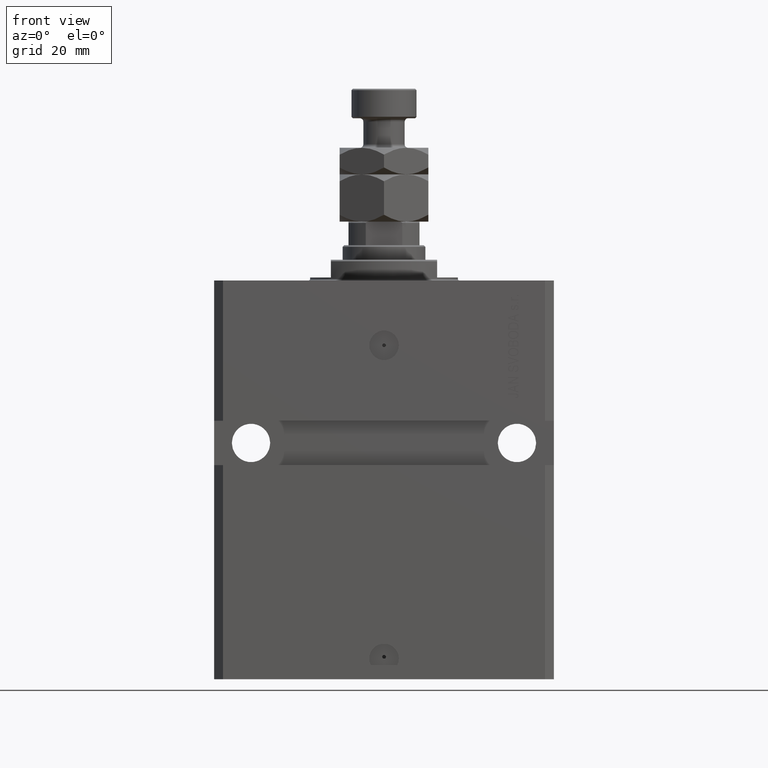
[diagram: clean part render]
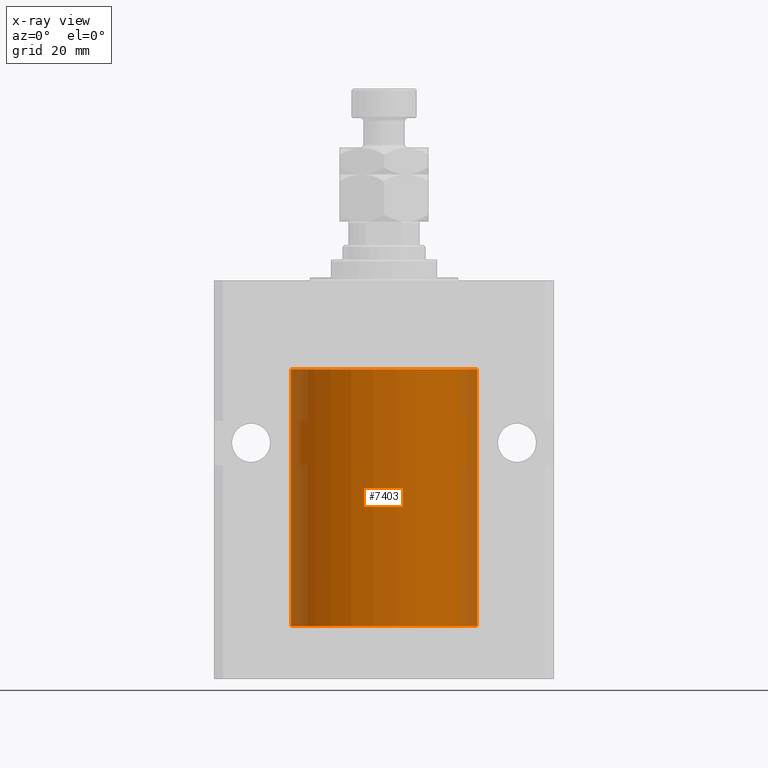
[diagram: x-ray — body ghosted, one internal face saturated and labeled with its STEP entity id]
A machine part, front view, then the same camera in x-ray: the body is ghosted and one INTERNAL B-rep face — a face not visible from any outside direction — is saturated and labeled: STEP entity #7403.
In plain terms, the highlighted cylindrical surface (partial cylindrical patch) has radius 31.5 mm, axis along (0, 0, 1).
Its self-contained STEP definition (entity closure, byte-faithful):
#206 = VERTEX_POINT ( 'NONE', #22600 ) ;
#939 = DIRECTION ( 'NONE',  ( -0.000000000000000000, -0.000000000000000000, 1.000000000000000000 ) ) ;
#1181 = LINE ( 'NONE', #4564, #10597 ) ;
#1528 = CARTESIAN_POINT ( 'NONE',  ( 0.000000000000000000, 0.000000000000000000, -117.0999999999999943 ) ) ;
#1666 = EDGE_CURVE ( 'NONE', #33650, #46640, #13874, .T. ) ;
#1940 = EDGE_LOOP ( 'NONE', ( #21794, #20771, #46532, #18380, #47286, #14823, #12312, #18649, #42335 ) ) ;
#2498 = CARTESIAN_POINT ( 'NONE',  ( 31.49851930977805381, -0.3264760966898029859, -113.4426595268314770 ) ) ;
#2671 = AXIS2_PLACEMENT_3D ( 'NONE', #17623, #25394, #17142 ) ;
#4160 = CARTESIAN_POINT ( 'NONE',  ( -31.50000000000000000, 3.857637417314162689E-15, -117.0999999999999943 ) ) ;
#4297 = CARTESIAN_POINT ( 'NONE',  ( -31.49380174372966223, -0.6248613812773637921, -114.1653655539884369 ) ) ;
#4564 = CARTESIAN_POINT ( 'NONE',  ( -31.50000000000000000, 3.857637417314162689E-15, -117.0999999999999943 ) ) ;
#5357 = DIRECTION ( 'NONE',  ( -0.000000000000000000, -0.000000000000000000, 1.000000000000000000 ) ) ;
#6394 = CYLINDRICAL_SURFACE ( 'NONE', #2671, 31.50000000000000000 ) ;
#6760 = VERTEX_POINT ( 'NONE', #27304 ) ;
#6822 = CARTESIAN_POINT ( 'NONE',  ( 31.50000000000000000, -2.492939093807799249E-15, -114.6250000000000000 ) ) ;
#7403 = ADVANCED_FACE ( 'NONE', ( #36116 ), #6394, .F. ) ;
#7714 = CARTESIAN_POINT ( 'NONE',  ( -31.49851430197701063, -0.3269482044720602998, -113.4429011246694188 ) ) ;
#7912 = CARTESIAN_POINT ( 'NONE',  ( 31.50000000000000000, 0.000000000000000000, -117.0999999999999943 ) ) ;
#9555 = DIRECTION ( 'NONE',  ( 1.000000000000000000, 0.000000000000000000, 0.000000000000000000 ) ) ;
#9825 = EDGE_CURVE ( 'NONE', #33650, #45529, #46497, .T. ) ;
#10597 = VECTOR ( 'NONE', #939, 1000.000000000000000 ) ;
#11118 = VERTEX_POINT ( 'NONE', #22850 ) ;
#11142 = EDGE_CURVE ( 'NONE', #6760, #45529, #37035, .T. ) ;
#11483 = LINE ( 'NONE', #4160, #29377 ) ;
#11711 = DIRECTION ( 'NONE',  ( -0.000000000000000000, -0.000000000000000000, 1.000000000000000000 ) ) ;
#12091 = CARTESIAN_POINT ( 'NONE',  ( -31.50000000000000000, -0.1631292369235416984, -114.6250000000001563 ) ) ;
#12312 = ORIENTED_EDGE ( 'NONE', *, *, #1666, .T. ) ;
#13697 = CARTESIAN_POINT ( 'NONE',  ( 31.49379899281761652, -0.6250000000000288658, -114.0000000000000000 ) ) ;
#13874 = B_SPLINE_CURVE_WITH_KNOTS ( 'NONE', 3,
 ( #25622, #40705, #2498, #17371, #47038, #13697 ),
 .UNSPECIFIED., .F., .F.,
 ( 4, 2, 4 ),
 ( 0.001954083649707730446, 0.002442753259884901558, 0.002931422870062072236 ),
 .UNSPECIFIED. ) ;
#13898 = CARTESIAN_POINT ( 'NONE',  ( 31.49851597466318864, -0.3267811800504749065, -114.5571701479423297 ) ) ;
#14522 = CARTESIAN_POINT ( 'NONE',  ( -31.50000000000000000, 3.857637417314162689E-15, -117.0999999999999943 ) ) ;
#14717 = EDGE_CURVE ( 'NONE', #27195, #11118, #1181, .T. ) ;
#14823 = ORIENTED_EDGE ( 'NONE', *, *, #9825, .F. ) ;
#15271 = CARTESIAN_POINT ( 'NONE',  ( -31.50000000000000000, -2.862469004324082213E-15, -113.3750000000000000 ) ) ;
#15290 = CARTESIAN_POINT ( 'NONE',  ( -31.49527619204366857, -0.5575625051463252158, -113.6738430774043564 ) ) ;
#15524 = CARTESIAN_POINT ( 'NONE',  ( -31.49528704891774211, -0.5569519313505083558, -114.3270938121662539 ) ) ;
#15599 = B_SPLINE_CURVE_WITH_KNOTS ( 'NONE', 3,
 ( #41297, #12091, #34257, #15524, #4297, #26944, #15290, #7714, #26706, #30124 ),
 .UNSPECIFIED., .F., .F.,
 ( 4, 2, 2, 2, 4 ),
 ( 0.001954083649707762538, 0.002442494148669354520, 0.002930904647630946935, 0.003419315146592538917, 0.003907725645554130899 ),
 .UNSPECIFIED. ) ;
#16460 = DIRECTION ( 'NONE',  ( 0.000000000000000000, 0.000000000000000000, 1.000000000000000000 ) ) ;
#16832 = AXIS2_PLACEMENT_3D ( 'NONE', #17177, #16460, #42721 ) ;
#16944 = CARTESIAN_POINT ( 'NONE',  ( 31.50000000000006395, 3.442404755096224483E-13, -113.3749999999967741 ) ) ;
#17099 = DIRECTION ( 'NONE',  ( 0.000000000000000000, 0.000000000000000000, 1.000000000000000000 ) ) ;
#17142 = DIRECTION ( 'NONE',  ( 1.000000000000000000, 0.000000000000000000, 0.000000000000000000 ) ) ;
#17177 = CARTESIAN_POINT ( 'NONE',  ( 0.000000000000000000, 0.000000000000000000, -30.10000000000000142 ) ) ;
#17371 = CARTESIAN_POINT ( 'NONE',  ( 31.49528358446202603, -0.5571510427948113131, -113.6732007340060449 ) ) ;
#17623 = CARTESIAN_POINT ( 'NONE',  ( 0.000000000000000000, 0.000000000000000000, -117.0999999999999943 ) ) ;
#18196 = EDGE_CURVE ( 'NONE', #39456, #6760, #11483, .T. ) ;
#18380 = ORIENTED_EDGE ( 'NONE', *, *, #18196, .T. ) ;
#18649 = ORIENTED_EDGE ( 'NONE', *, *, #47217, .T. ) ;
#20481 = CARTESIAN_POINT ( 'NONE',  ( 31.49379899281761652, -0.6250000000000288658, -114.0000000000000000 ) ) ;
#20771 = ORIENTED_EDGE ( 'NONE', *, *, #14717, .T. ) ;
#21747 = LINE ( 'NONE', #33890, #43678 ) ;
#21794 = ORIENTED_EDGE ( 'NONE', *, *, #30982, .F. ) ;
#22600 = CARTESIAN_POINT ( 'NONE',  ( 31.50000000000000000, -2.492939093807799249E-15, -114.6250000000000000 ) ) ;
#22850 = CARTESIAN_POINT ( 'NONE',  ( -31.50000000000006395, 3.480981129463732167E-13, -114.6250000000032401 ) ) ;
#25099 = CARTESIAN_POINT ( 'NONE',  ( 31.50000000000000000, -0.1650602271992127057, -114.6250000000000142 ) ) ;
#25394 = DIRECTION ( 'NONE',  ( -0.000000000000000000, -0.000000000000000000, 1.000000000000000000 ) ) ;
#25622 = CARTESIAN_POINT ( 'NONE',  ( 31.50000000000006395, 3.442404755096224483E-13, -113.3749999999967741 ) ) ;
#26706 = CARTESIAN_POINT ( 'NONE',  ( -31.49999999999999289, -0.1651478413229920950, -113.3749999999999858 ) ) ;
#26944 = CARTESIAN_POINT ( 'NONE',  ( -31.49379625064871391, -0.6251381781549172345, -113.8356839311847466 ) ) ;
#27195 = VERTEX_POINT ( 'NONE', #14522 ) ;
#27304 = CARTESIAN_POINT ( 'NONE',  ( -31.50000000000000000, 3.857637417314162689E-15, -30.10000000000000142 ) ) ;
#28990 = CARTESIAN_POINT ( 'NONE',  ( 31.49379899281761652, -0.6250000000000288658, -114.0000000000000000 ) ) ;
#29377 = VECTOR ( 'NONE', #11711, 1000.000000000000000 ) ;
#29486 = CARTESIAN_POINT ( 'NONE',  ( 31.49379899281760942, -0.6250000000000288658, -114.1647754387995661 ) ) ;
#30124 = CARTESIAN_POINT ( 'NONE',  ( -31.50000000000000000, -2.862469004324082213E-15, -113.3750000000000000 ) ) ;
#30760 = VECTOR ( 'NONE', #5357, 1000.000000000000000 ) ;
#30982 = EDGE_CURVE ( 'NONE', #27195, #33653, #39748, .T. ) ;
#31286 = CARTESIAN_POINT ( 'NONE',  ( 31.50000000000000000, 0.000000000000000000, -117.0999999999999943 ) ) ;
#33509 = EDGE_CURVE ( 'NONE', #11118, #39456, #15599, .T. ) ;
#33650 = VERTEX_POINT ( 'NONE', #16944 ) ;
#33653 = VERTEX_POINT ( 'NONE', #31286 ) ;
#33890 = CARTESIAN_POINT ( 'NONE',  ( 31.50000000000000000, 0.000000000000000000, -117.0999999999999943 ) ) ;
#34257 = CARTESIAN_POINT ( 'NONE',  ( -31.49852099238383119, -0.3263081977449447946, -114.5574125724066619 ) ) ;
#35132 = AXIS2_PLACEMENT_3D ( 'NONE', #1528, #17099, #9555 ) ;
#36116 = FACE_OUTER_BOUND ( 'NONE', #1940, .T. ) ;
#37035 = CIRCLE ( 'NONE', #16832, 31.50000000000000000 ) ;
#39456 = VERTEX_POINT ( 'NONE', #15271 ) ;
#39748 = CIRCLE ( 'NONE', #35132, 31.50000000000000000 ) ;
#40444 = DIRECTION ( 'NONE',  ( -0.000000000000000000, -0.000000000000000000, 1.000000000000000000 ) ) ;
#40705 = CARTESIAN_POINT ( 'NONE',  ( 31.50000000000000000, -0.1632157801386601437, -113.3749999999998579 ) ) ;
#41297 = CARTESIAN_POINT ( 'NONE',  ( -31.50000000000006395, 3.480981129463732167E-13, -114.6250000000032401 ) ) ;
#41733 = EDGE_CURVE ( 'NONE', #33653, #206, #21747, .T. ) ;
#42335 = ORIENTED_EDGE ( 'NONE', *, *, #41733, .F. ) ;
#42585 = B_SPLINE_CURVE_WITH_KNOTS ( 'NONE', 3,
 ( #28990, #29486, #47240, #13898, #25099, #6822 ),
 .UNSPECIFIED., .F., .F.,
 ( 4, 2, 4 ),
 ( 0.002931422870062072236, 0.003419574257808113277, 0.003907725645554154317 ),
 .UNSPECIFIED. ) ;
#42721 = DIRECTION ( 'NONE',  ( 1.000000000000000000, 0.000000000000000000, 0.000000000000000000 ) ) ;
#43597 = CARTESIAN_POINT ( 'NONE',  ( 31.50000000000000000, 0.000000000000000000, -30.10000000000000142 ) ) ;
#43678 = VECTOR ( 'NONE', #40444, 1000.000000000000000 ) ;
#45529 = VERTEX_POINT ( 'NONE', #43597 ) ;
#46497 = LINE ( 'NONE', #7912, #30760 ) ;
#46532 = ORIENTED_EDGE ( 'NONE', *, *, #33509, .T. ) ;
#46640 = VERTEX_POINT ( 'NONE', #20481 ) ;
#47038 = CARTESIAN_POINT ( 'NONE',  ( 31.49379899281761652, -0.6250000000000287548, -113.8350496352847756 ) ) ;
#47217 = EDGE_CURVE ( 'NONE', #46640, #206, #42585, .T. ) ;
#47240 = CARTESIAN_POINT ( 'NONE',  ( 31.49527967292564057, -0.5573624224366642288, -114.3264531259596168 ) ) ;
#47286 = ORIENTED_EDGE ( 'NONE', *, *, #11142, .T. ) ;